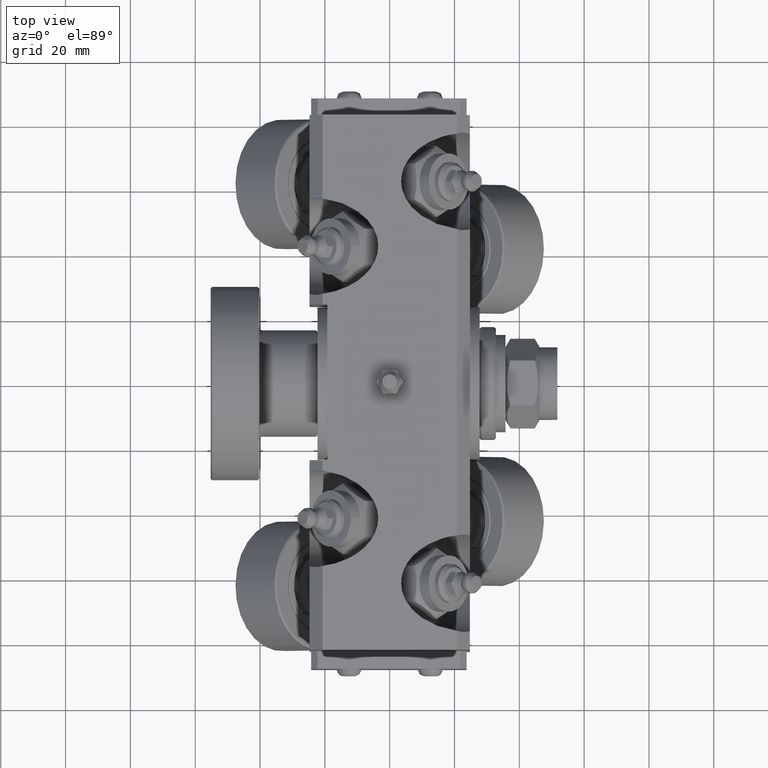
[diagram: clean part render]
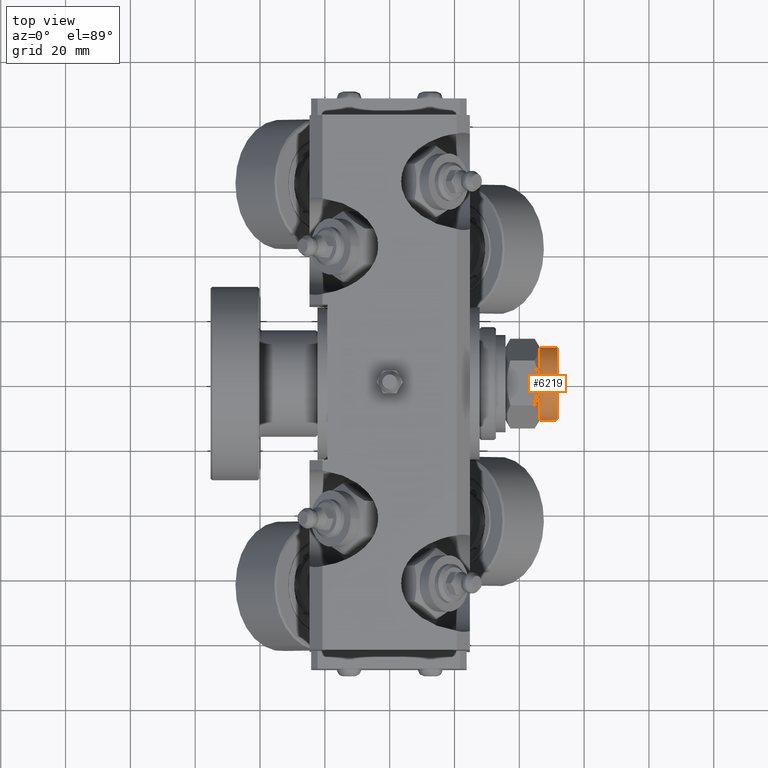
[diagram: same view with one face highlighted and labeled with its STEP entity id]
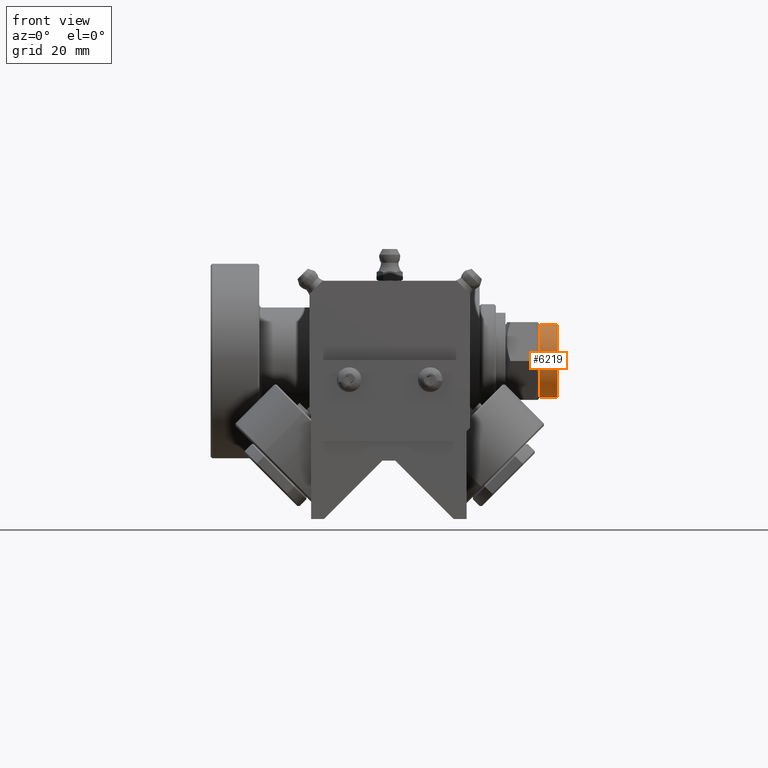
[diagram: same view with one face highlighted and labeled with its STEP entity id]
A machine part, top view. The second image highlights one B-rep face of the part: STEP entity #6219.
A second angle (front view) of the same face is appended — the face is thin or edge-on in the first view.
In plain terms, the highlighted cylindrical surface (bore or boss wall) has radius 11.25 mm, axis along (1, 0, -0).
Its self-contained STEP definition (entity closure, byte-faithful):
#897=FACE_OUTER_BOUND('',#1317,.T.);
#1317=EDGE_LOOP('',(#5397,#5398,#5399,#5400,#5401));
#1699=CIRCLE('',#7294,11.25);
#1702=CIRCLE('',#7300,11.25);
#1703=CIRCLE('',#7301,11.25);
#2091=LINE('',#12676,#2441);
#2441=VECTOR('',#8846,11.25);
#3017=VERTEX_POINT('',#12601);
#3020=VERTEX_POINT('',#12611);
#3021=VERTEX_POINT('',#12612);
#3824=EDGE_CURVE('',#3017,#3017,#1699,.T.);
#3828=EDGE_CURVE('',#3020,#3021,#1702,.T.);
#3836=EDGE_CURVE('',#3021,#3020,#1703,.T.);
#3849=EDGE_CURVE('',#3017,#3020,#2091,.T.);
#5397=ORIENTED_EDGE('',*,*,#3824,.T.);
#5398=ORIENTED_EDGE('',*,*,#3849,.T.);
#5399=ORIENTED_EDGE('',*,*,#3836,.F.);
#5400=ORIENTED_EDGE('',*,*,#3828,.F.);
#5401=ORIENTED_EDGE('',*,*,#3849,.F.);
#5959=CYLINDRICAL_SURFACE('',#7307,11.25);
#6219=ADVANCED_FACE('',(#897),#5959,.T.);
#7294=AXIS2_PLACEMENT_3D('',#12602,#8810,#8811);
#7300=AXIS2_PLACEMENT_3D('',#12613,#8823,#8824);
#7301=AXIS2_PLACEMENT_3D('',#12639,#8826,#8827);
#7307=AXIS2_PLACEMENT_3D('',#12675,#8844,#8845);
#8810=DIRECTION('center_axis',(-1.,0.,0.));
#8811=DIRECTION('ref_axis',(0.,0.,1.));
#8823=DIRECTION('center_axis',(-1.,0.,0.));
#8824=DIRECTION('ref_axis',(0.,0.,1.));
#8826=DIRECTION('center_axis',(-1.,0.,0.));
#8827=DIRECTION('ref_axis',(0.,0.,1.));
#8844=DIRECTION('center_axis',(1.,0.,0.));
#8845=DIRECTION('ref_axis',(0.,0.,1.));
#8846=DIRECTION('',(-1.,0.,0.));
#12601=CARTESIAN_POINT('',(16.,1.37772764904077E-15,-11.25));
#12602=CARTESIAN_POINT('Origin',(16.,0.,0.));
#12611=CARTESIAN_POINT('',(10.5,1.37772764904077E-15,-11.25));
#12612=CARTESIAN_POINT('',(10.5,-11.25,1.37772764904077E-15));
#12613=CARTESIAN_POINT('Origin',(10.5,0.,0.));
#12639=CARTESIAN_POINT('Origin',(10.5,0.,0.));
#12675=CARTESIAN_POINT('Origin',(10.5,0.,0.));
#12676=CARTESIAN_POINT('',(10.5,1.37772764904077E-15,-11.25));